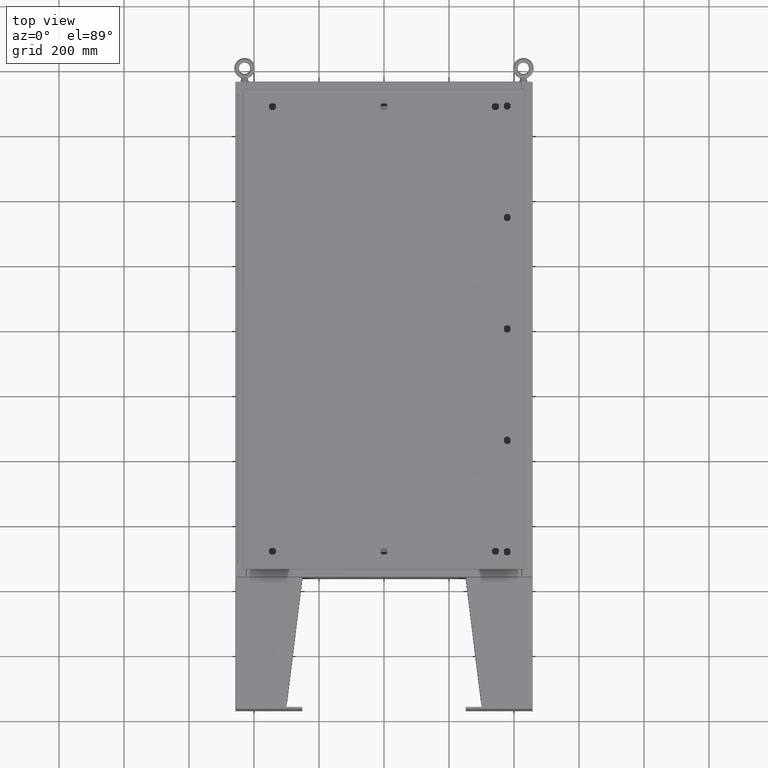
[diagram: clean part render]
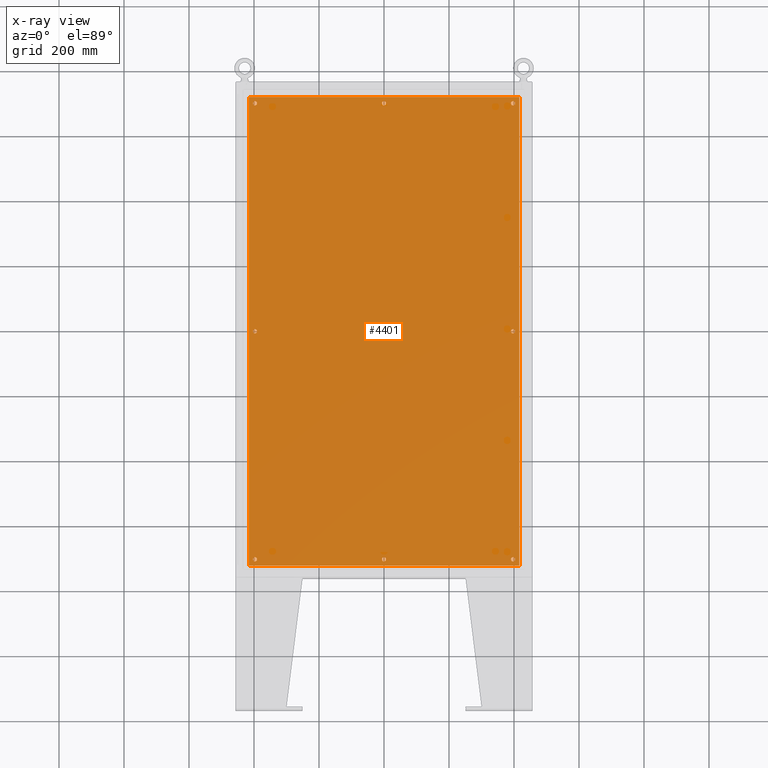
[diagram: x-ray — body ghosted, one internal face saturated and labeled with its STEP entity id]
A machine part, top view, then the same camera in x-ray: the body is ghosted and one INTERNAL B-rep face — a face not visible from any outside direction — is saturated and labeled: STEP entity #4401.
In plain terms, the highlighted planar face has unit normal (0, 0, -1).
Its self-contained STEP definition (entity closure, byte-faithful):
#550 = DIRECTION ( 'NONE',  ( -1.000000000000000000, 0.0000000000000000000, -0.0000000000000000000 ) ) ;
#1167 = ORIENTED_EDGE ( 'NONE', *, *, #27065, .T. ) ;
#1196 = ORIENTED_EDGE ( 'NONE', *, *, #41394, .T. ) ;
#1245 = CARTESIAN_POINT ( 'NONE',  ( -15.87500000000000700, -7.992687152332741600E-016, -0.1039999999999999800 ) ) ;
#1359 = VERTEX_POINT ( 'NONE', #34253 ) ;
#1608 = EDGE_CURVE ( 'NONE', #35542, #15860, #20477, .T. ) ;
#2600 = ORIENTED_EDGE ( 'NONE', *, *, #48618, .T. ) ;
#2868 = LINE ( 'NONE', #38298, #18624 ) ;
#3216 = DIRECTION ( 'NONE',  ( -0.0000000000000000000, -0.0000000000000000000, 1.000000000000000000 ) ) ;
#3604 = EDGE_CURVE ( 'NONE', #9889, #61488, #61152, .T. ) ;
#3687 = DIRECTION ( 'NONE',  ( -1.000000000000000000, 0.0000000000000000000, 0.0000000000000000000 ) ) ;
#3949 = CARTESIAN_POINT ( 'NONE',  ( -15.37500000000000900, 27.62500000000000000, -0.1039999999999999800 ) ) ;
#4300 = EDGE_CURVE ( 'NONE', #52064, #21368, #27678, .T. ) ;
#4372 = FACE_BOUND ( 'NONE', #45176, .T. ) ;
#4401 = ADVANCED_FACE ( 'NONE', ( #55765, #5853, #20067, #42757, #29957, #17103, #4372, #54223, #41229 ), #40845, .T. ) ;
#4665 = DIRECTION ( 'NONE',  ( 0.0000000000000000000, -1.000000000000000000, 0.0000000000000000000 ) ) ;
#5618 = CARTESIAN_POINT ( 'NONE',  ( -0.2499999999999998600, 27.62500000000000000, -0.1039999999999999800 ) ) ;
#5853 = FACE_BOUND ( 'NONE', #42487, .T. ) ;
#6270 = CIRCLE ( 'NONE', #23617, 0.2500000000000008900 ) ;
#6537 = AXIS2_PLACEMENT_3D ( 'NONE', #42175, #13311, #47133 ) ;
#6631 = VERTEX_POINT ( 'NONE', #54311 ) ;
#7034 = EDGE_LOOP ( 'NONE', ( #60758, #46325 ) ) ;
#7906 = CARTESIAN_POINT ( 'NONE',  ( 0.0000000000000000000, -27.62500000000000000, -0.1039999999999999800 ) ) ;
#7960 = DIRECTION ( 'NONE',  ( -0.0000000000000000000, -0.0000000000000000000, 1.000000000000000000 ) ) ;
#8803 = LINE ( 'NONE', #14253, #44218 ) ;
#9446 = DIRECTION ( 'NONE',  ( -0.0000000000000000000, -0.0000000000000000000, 1.000000000000000000 ) ) ;
#9889 = VERTEX_POINT ( 'NONE', #17503 ) ;
#10021 = DIRECTION ( 'NONE',  ( -0.0000000000000000000, -0.0000000000000000000, 1.000000000000000000 ) ) ;
#10213 = EDGE_CURVE ( 'NONE', #42622, #14749, #23741, .T. ) ;
#10562 = ORIENTED_EDGE ( 'NONE', *, *, #38454, .F. ) ;
#10713 = CARTESIAN_POINT ( 'NONE',  ( -15.62500000000000900, -27.62500000000000000, -0.1039999999999999800 ) ) ;
#11122 = CARTESIAN_POINT ( 'NONE',  ( -15.62500000000000500, -8.298848852119578500E-016, -0.1039999999999999800 ) ) ;
#11174 = ORIENTED_EDGE ( 'NONE', *, *, #29880, .T. ) ;
#12158 = CARTESIAN_POINT ( 'NONE',  ( 0.0000000000000000000, 0.0000000000000000000, -0.1039999999999999800 ) ) ;
#12711 = DIRECTION ( 'NONE',  ( -1.000000000000000000, 0.0000000000000000000, 0.0000000000000000000 ) ) ;
#12744 = CARTESIAN_POINT ( 'NONE',  ( 0.2500000000000011700, -27.62500000000000000, -0.1039999999999999800 ) ) ;
#13311 = DIRECTION ( 'NONE',  ( -0.0000000000000000000, -0.0000000000000000000, 1.000000000000000000 ) ) ;
#13312 = CARTESIAN_POINT ( 'NONE',  ( -15.62500000000000900, -27.62500000000000000, -0.1039999999999999800 ) ) ;
#13473 = CARTESIAN_POINT ( 'NONE',  ( 15.62500000000000500, 2.997136362123522700E-015, -0.1039999999999999800 ) ) ;
#13734 = CARTESIAN_POINT ( 'NONE',  ( -15.87500000000000700, -27.62500000000000000, -0.1039999999999999800 ) ) ;
#13741 = EDGE_LOOP ( 'NONE', ( #38305, #57858, #10562, #38584 ) ) ;
#14032 = CARTESIAN_POINT ( 'NONE',  ( -15.87500000000001100, 27.62500000000000000, -0.1039999999999999800 ) ) ;
#14253 = CARTESIAN_POINT ( 'NONE',  ( 16.50000000000000000, 28.38299999999999600, -0.1040000000000009400 ) ) ;
#14749 = VERTEX_POINT ( 'NONE', #12744 ) ;
#15159 = CARTESIAN_POINT ( 'NONE',  ( -15.62500000000001100, 27.62500000000000000, -0.1039999999999999800 ) ) ;
#15561 = DIRECTION ( 'NONE',  ( -1.000000000000000000, 0.0000000000000000000, 0.0000000000000000000 ) ) ;
#15860 = VERTEX_POINT ( 'NONE', #1245 ) ;
#16961 = EDGE_LOOP ( 'NONE', ( #47935, #35958 ) ) ;
#17048 = VERTEX_POINT ( 'NONE', #5618 ) ;
#17103 = FACE_BOUND ( 'NONE', #7034, .T. ) ;
#17135 = ORIENTED_EDGE ( 'NONE', *, *, #3604, .T. ) ;
#17262 = AXIS2_PLACEMENT_3D ( 'NONE', #46351, #17387, #51188 ) ;
#17346 = DIRECTION ( 'NONE',  ( -0.0000000000000000000, -0.0000000000000000000, 1.000000000000000000 ) ) ;
#17387 = DIRECTION ( 'NONE',  ( -0.0000000000000000000, -0.0000000000000000000, 1.000000000000000000 ) ) ;
#17503 = CARTESIAN_POINT ( 'NONE',  ( 15.37500000000000900, 27.62500000000000000, -0.1039999999999999800 ) ) ;
#17514 = CIRCLE ( 'NONE', #30110, 0.2499999999999987000 ) ;
#17616 = AXIS2_PLACEMENT_3D ( 'NONE', #40461, #3216, #29776 ) ;
#18135 = DIRECTION ( 'NONE',  ( -1.000000000000000000, 0.0000000000000000000, 0.0000000000000000000 ) ) ;
#18318 = DIRECTION ( 'NONE',  ( -1.000000000000000000, 0.0000000000000000000, 0.0000000000000000000 ) ) ;
#18624 = VECTOR ( 'NONE', #4665, 39.37007874015748100 ) ;
#18903 = DIRECTION ( 'NONE',  ( -0.0000000000000000000, -0.0000000000000000000, 1.000000000000000000 ) ) ;
#19435 = CIRCLE ( 'NONE', #6537, 0.2499999999999987000 ) ;
#19958 = DIRECTION ( 'NONE',  ( -1.000000000000000000, 0.0000000000000000000, 0.0000000000000000000 ) ) ;
#20002 = AXIS2_PLACEMENT_3D ( 'NONE', #13473, #47307, #18318 ) ;
#20067 = FACE_BOUND ( 'NONE', #16961, .T. ) ;
#20477 = CIRCLE ( 'NONE', #25571, 0.2500000000000008900 ) ;
#20937 = VERTEX_POINT ( 'NONE', #14032 ) ;
#21368 = VERTEX_POINT ( 'NONE', #62011 ) ;
#21892 = AXIS2_PLACEMENT_3D ( 'NONE', #52390, #59680, #24543 ) ;
#23220 = AXIS2_PLACEMENT_3D ( 'NONE', #47900, #18903, #52771 ) ;
#23617 = AXIS2_PLACEMENT_3D ( 'NONE', #61584, #32512, #3687 ) ;
#23741 = CIRCLE ( 'NONE', #21892, 0.2500000000000011700 ) ;
#24370 = AXIS2_PLACEMENT_3D ( 'NONE', #38892, #10021, #43750 ) ;
#24388 = VERTEX_POINT ( 'NONE', #31620 ) ;
#24543 = DIRECTION ( 'NONE',  ( -1.000000000000000000, 0.0000000000000000000, 0.0000000000000000000 ) ) ;
#24897 = CARTESIAN_POINT ( 'NONE',  ( 16.38299999999999900, -28.38300000000000600, -0.1040000000000009100 ) ) ;
#25257 = CARTESIAN_POINT ( 'NONE',  ( 15.87500000000000700, 2.997136362123522700E-015, -0.1039999999999999800 ) ) ;
#25493 = CARTESIAN_POINT ( 'NONE',  ( -16.50000000000000000, -28.38300000000000600, -0.1040000000000009400 ) ) ;
#25571 = AXIS2_PLACEMENT_3D ( 'NONE', #11122, #7960, #54095 ) ;
#25745 = CARTESIAN_POINT ( 'NONE',  ( 0.0000000000000000000, 27.62500000000000000, -0.1039999999999999800 ) ) ;
#25917 = AXIS2_PLACEMENT_3D ( 'NONE', #10713, #44457, #15561 ) ;
#25970 = LINE ( 'NONE', #25493, #61661 ) ;
#26710 = EDGE_LOOP ( 'NONE', ( #2600, #61121 ) ) ;
#27065 = EDGE_CURVE ( 'NONE', #41713, #24388, #59250, .T. ) ;
#27678 = LINE ( 'NONE', #55244, #48889 ) ;
#27954 = EDGE_CURVE ( 'NONE', #61488, #9889, #62158, .T. ) ;
#29776 = DIRECTION ( 'NONE',  ( -1.000000000000000000, 0.0000000000000000000, 0.0000000000000000000 ) ) ;
#29877 = EDGE_CURVE ( 'NONE', #15860, #35542, #6270, .T. ) ;
#29880 = EDGE_CURVE ( 'NONE', #24388, #41713, #17514, .T. ) ;
#29957 = FACE_BOUND ( 'NONE', #42706, .T. ) ;
#30110 = AXIS2_PLACEMENT_3D ( 'NONE', #13312, #47138, #18135 ) ;
#30236 = AXIS2_PLACEMENT_3D ( 'NONE', #15159, #48973, #19958 ) ;
#30406 = DIRECTION ( 'NONE',  ( 1.000000000000000000, -0.0000000000000000000, -0.0000000000000000000 ) ) ;
#30613 = EDGE_CURVE ( 'NONE', #34067, #54701, #34075, .T. ) ;
#30648 = DIRECTION ( 'NONE',  ( -1.000000000000000000, 0.0000000000000000000, 0.0000000000000000000 ) ) ;
#31620 = CARTESIAN_POINT ( 'NONE',  ( -15.37500000000000900, -27.62500000000000000, -0.1039999999999999800 ) ) ;
#32008 = CIRCLE ( 'NONE', #20002, 0.2500000000000008900 ) ;
#32237 = AXIS2_PLACEMENT_3D ( 'NONE', #25745, #59707, #30648 ) ;
#32512 = DIRECTION ( 'NONE',  ( -0.0000000000000000000, -0.0000000000000000000, 1.000000000000000000 ) ) ;
#32966 = EDGE_CURVE ( 'NONE', #34210, #6631, #53612, .T. ) ;
#33460 = AXIS2_PLACEMENT_3D ( 'NONE', #12158, #62054, #550 ) ;
#33723 = CARTESIAN_POINT ( 'NONE',  ( -16.38299999999999900, -28.38300000000000600, -0.1040000000000009400 ) ) ;
#33903 = CIRCLE ( 'NONE', #30236, 0.2500000000000008900 ) ;
#34067 = VERTEX_POINT ( 'NONE', #36035 ) ;
#34075 = CIRCLE ( 'NONE', #23220, 0.2500000000000008900 ) ;
#34210 = VERTEX_POINT ( 'NONE', #37031 ) ;
#34253 = CARTESIAN_POINT ( 'NONE',  ( 0.2499999999999998600, 27.62500000000000000, -0.1039999999999999800 ) ) ;
#35298 = AXIS2_PLACEMENT_3D ( 'NONE', #46306, #17346, #51146 ) ;
#35542 = VERTEX_POINT ( 'NONE', #57362 ) ;
#35958 = ORIENTED_EDGE ( 'NONE', *, *, #30613, .T. ) ;
#36035 = CARTESIAN_POINT ( 'NONE',  ( 15.37500000000000500, 3.027752532102206500E-015, -0.1039999999999999800 ) ) ;
#36324 = CIRCLE ( 'NONE', #32237, 0.2499999999999998600 ) ;
#37031 = CARTESIAN_POINT ( 'NONE',  ( 15.87500000000000700, -27.62500000000000000, -0.1039999999999999800 ) ) ;
#38286 = CARTESIAN_POINT ( 'NONE',  ( 15.62500000000000900, -27.62500000000000000, -0.1039999999999999800 ) ) ;
#38298 = CARTESIAN_POINT ( 'NONE',  ( -16.38299999999999900, 28.38299999999998800, -0.1040000000000009100 ) ) ;
#38305 = ORIENTED_EDGE ( 'NONE', *, *, #39344, .F. ) ;
#38454 = EDGE_CURVE ( 'NONE', #21368, #56417, #8803, .T. ) ;
#38584 = ORIENTED_EDGE ( 'NONE', *, *, #4300, .F. ) ;
#38892 = CARTESIAN_POINT ( 'NONE',  ( 0.0000000000000000000, 27.62500000000000000, -0.1039999999999999800 ) ) ;
#39344 = EDGE_CURVE ( 'NONE', #56242, #52064, #25970, .T. ) ;
#39642 = EDGE_CURVE ( 'NONE', #54701, #34067, #32008, .T. ) ;
#40461 = CARTESIAN_POINT ( 'NONE',  ( 15.62500000000000900, 27.62500000000000000, -0.1039999999999999800 ) ) ;
#40845 = PLANE ( 'NONE',  #33460 ) ;
#40962 = CIRCLE ( 'NONE', #24370, 0.2499999999999998600 ) ;
#41229 = FACE_OUTER_BOUND ( 'NONE', #13741, .T. ) ;
#41394 = EDGE_CURVE ( 'NONE', #1359, #17048, #36324, .T. ) ;
#41611 = DIRECTION ( 'NONE',  ( -0.0000000000000000000, -0.0000000000000000000, 1.000000000000000000 ) ) ;
#41713 = VERTEX_POINT ( 'NONE', #13734 ) ;
#42175 = CARTESIAN_POINT ( 'NONE',  ( 15.62500000000000900, -27.62500000000000000, -0.1039999999999999800 ) ) ;
#42487 = EDGE_LOOP ( 'NONE', ( #1196, #61855 ) ) ;
#42622 = VERTEX_POINT ( 'NONE', #44407 ) ;
#42706 = EDGE_LOOP ( 'NONE', ( #11174, #1167 ) ) ;
#42757 = FACE_BOUND ( 'NONE', #42808, .T. ) ;
#42808 = EDGE_LOOP ( 'NONE', ( #52973, #53928 ) ) ;
#43151 = DIRECTION ( 'NONE',  ( -1.000000000000000000, 0.0000000000000000000, 0.0000000000000000000 ) ) ;
#43750 = DIRECTION ( 'NONE',  ( -1.000000000000000000, 0.0000000000000000000, 0.0000000000000000000 ) ) ;
#44218 = VECTOR ( 'NONE', #48272, 39.37007874015748100 ) ;
#44407 = CARTESIAN_POINT ( 'NONE',  ( -0.2500000000000011700, -27.62500000000000000, -0.1039999999999999800 ) ) ;
#44457 = DIRECTION ( 'NONE',  ( -0.0000000000000000000, -0.0000000000000000000, 1.000000000000000000 ) ) ;
#45176 = EDGE_LOOP ( 'NONE', ( #50609, #17135 ) ) ;
#46306 = CARTESIAN_POINT ( 'NONE',  ( 15.62500000000000900, 27.62500000000000000, -0.1039999999999999800 ) ) ;
#46325 = ORIENTED_EDGE ( 'NONE', *, *, #50617, .T. ) ;
#46351 = CARTESIAN_POINT ( 'NONE',  ( -15.62500000000001100, 27.62500000000000000, -0.1039999999999999800 ) ) ;
#46726 = CARTESIAN_POINT ( 'NONE',  ( 15.87500000000000700, 27.62500000000000000, -0.1039999999999999800 ) ) ;
#46900 = EDGE_LOOP ( 'NONE', ( #58318, #47113 ) ) ;
#47113 = ORIENTED_EDGE ( 'NONE', *, *, #10213, .T. ) ;
#47133 = DIRECTION ( 'NONE',  ( -1.000000000000000000, 0.0000000000000000000, 0.0000000000000000000 ) ) ;
#47138 = DIRECTION ( 'NONE',  ( -0.0000000000000000000, -0.0000000000000000000, 1.000000000000000000 ) ) ;
#47307 = DIRECTION ( 'NONE',  ( -0.0000000000000000000, -0.0000000000000000000, 1.000000000000000000 ) ) ;
#47900 = CARTESIAN_POINT ( 'NONE',  ( 15.62500000000000500, 2.997136362123522700E-015, -0.1039999999999999800 ) ) ;
#47935 = ORIENTED_EDGE ( 'NONE', *, *, #39642, .T. ) ;
#48272 = DIRECTION ( 'NONE',  ( -1.000000000000000000, -0.0000000000000000000, -0.0000000000000000000 ) ) ;
#48618 = EDGE_CURVE ( 'NONE', #49598, #20937, #33903, .T. ) ;
#48889 = VECTOR ( 'NONE', #52896, 39.37007874015748100 ) ;
#48973 = DIRECTION ( 'NONE',  ( -0.0000000000000000000, -0.0000000000000000000, 1.000000000000000000 ) ) ;
#49598 = VERTEX_POINT ( 'NONE', #3949 ) ;
#50609 = ORIENTED_EDGE ( 'NONE', *, *, #27954, .T. ) ;
#50617 = EDGE_CURVE ( 'NONE', #6631, #34210, #19435, .T. ) ;
#51146 = DIRECTION ( 'NONE',  ( -1.000000000000000000, 0.0000000000000000000, 0.0000000000000000000 ) ) ;
#51188 = DIRECTION ( 'NONE',  ( -1.000000000000000000, 0.0000000000000000000, 0.0000000000000000000 ) ) ;
#51295 = AXIS2_PLACEMENT_3D ( 'NONE', #38286, #9446, #43151 ) ;
#51369 = EDGE_CURVE ( 'NONE', #56417, #56242, #2868, .T. ) ;
#52064 = VERTEX_POINT ( 'NONE', #24897 ) ;
#52390 = CARTESIAN_POINT ( 'NONE',  ( 0.0000000000000000000, -27.62500000000000000, -0.1039999999999999800 ) ) ;
#52771 = DIRECTION ( 'NONE',  ( -1.000000000000000000, 0.0000000000000000000, 0.0000000000000000000 ) ) ;
#52896 = DIRECTION ( 'NONE',  ( 0.0000000000000000000, 1.000000000000000000, 0.0000000000000000000 ) ) ;
#52973 = ORIENTED_EDGE ( 'NONE', *, *, #1608, .T. ) ;
#53450 = EDGE_CURVE ( 'NONE', #17048, #1359, #40962, .T. ) ;
#53612 = CIRCLE ( 'NONE', #51295, 0.2499999999999987000 ) ;
#53707 = CIRCLE ( 'NONE', #60236, 0.2500000000000011700 ) ;
#53928 = ORIENTED_EDGE ( 'NONE', *, *, #29877, .T. ) ;
#54095 = DIRECTION ( 'NONE',  ( -1.000000000000000000, 0.0000000000000000000, 0.0000000000000000000 ) ) ;
#54223 = FACE_BOUND ( 'NONE', #26710, .T. ) ;
#54311 = CARTESIAN_POINT ( 'NONE',  ( 15.37500000000000900, -27.62500000000000000, -0.1039999999999999800 ) ) ;
#54701 = VERTEX_POINT ( 'NONE', #25257 ) ;
#55244 = CARTESIAN_POINT ( 'NONE',  ( 16.38299999999999900, -28.38300000000000600, -0.1040000000000009100 ) ) ;
#55368 = EDGE_CURVE ( 'NONE', #14749, #42622, #53707, .T. ) ;
#55519 = CIRCLE ( 'NONE', #17262, 0.2500000000000008900 ) ;
#55765 = FACE_BOUND ( 'NONE', #46900, .T. ) ;
#56242 = VERTEX_POINT ( 'NONE', #33723 ) ;
#56417 = VERTEX_POINT ( 'NONE', #59774 ) ;
#57362 = CARTESIAN_POINT ( 'NONE',  ( -15.37500000000000500, -8.298848852119578500E-016, -0.1039999999999999800 ) ) ;
#57858 = ORIENTED_EDGE ( 'NONE', *, *, #51369, .F. ) ;
#58318 = ORIENTED_EDGE ( 'NONE', *, *, #55368, .T. ) ;
#59083 = EDGE_CURVE ( 'NONE', #20937, #49598, #55519, .T. ) ;
#59250 = CIRCLE ( 'NONE', #25917, 0.2499999999999987000 ) ;
#59680 = DIRECTION ( 'NONE',  ( -0.0000000000000000000, -0.0000000000000000000, 1.000000000000000000 ) ) ;
#59707 = DIRECTION ( 'NONE',  ( -0.0000000000000000000, -0.0000000000000000000, 1.000000000000000000 ) ) ;
#59774 = CARTESIAN_POINT ( 'NONE',  ( -16.38299999999999900, 28.38299999999998800, -0.1040000000000009100 ) ) ;
#60236 = AXIS2_PLACEMENT_3D ( 'NONE', #7906, #41611, #12711 ) ;
#60758 = ORIENTED_EDGE ( 'NONE', *, *, #32966, .T. ) ;
#61121 = ORIENTED_EDGE ( 'NONE', *, *, #59083, .T. ) ;
#61152 = CIRCLE ( 'NONE', #17616, 0.2499999999999987000 ) ;
#61488 = VERTEX_POINT ( 'NONE', #46726 ) ;
#61584 = CARTESIAN_POINT ( 'NONE',  ( -15.62500000000000500, -8.298848852119578500E-016, -0.1039999999999999800 ) ) ;
#61661 = VECTOR ( 'NONE', #30406, 39.37007874015748100 ) ;
#61855 = ORIENTED_EDGE ( 'NONE', *, *, #53450, .T. ) ;
#62011 = CARTESIAN_POINT ( 'NONE',  ( 16.38299999999999900, 28.38299999999998800, -0.1040000000000009100 ) ) ;
#62054 = DIRECTION ( 'NONE',  ( 0.0000000000000000000, 0.0000000000000000000, -1.000000000000000000 ) ) ;
#62158 = CIRCLE ( 'NONE', #35298, 0.2499999999999987000 ) ;